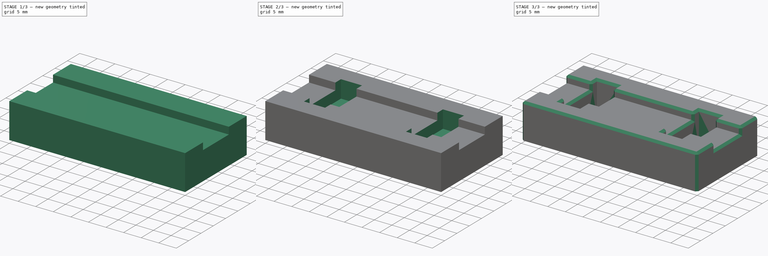
[diagram: build sequence overview — one tinted view per stage of 3, left to right]
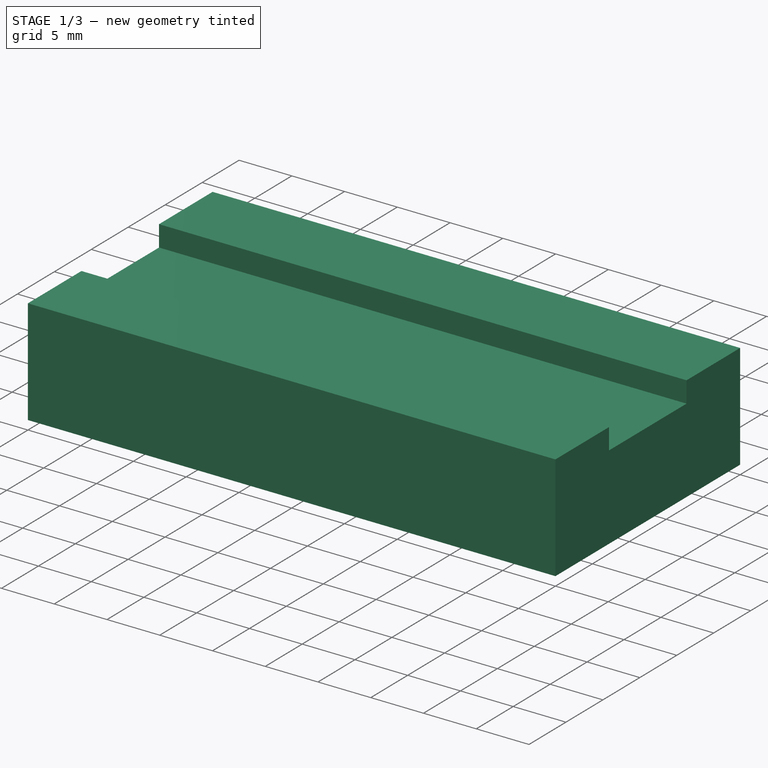
[diagram: stage 1 of 3 — iso view after this stage's code; geometry added in this stage tinted green]
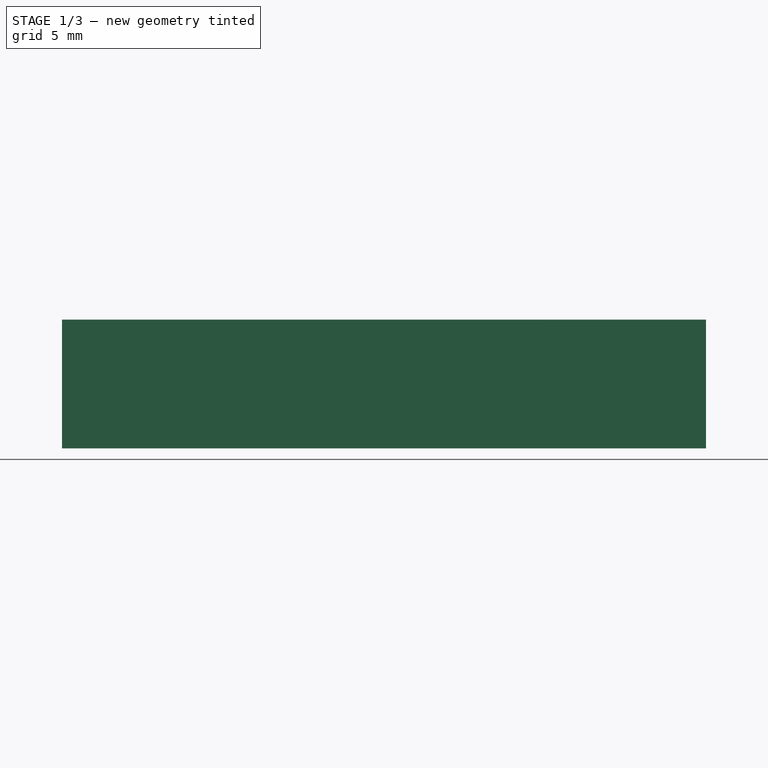
[diagram: stage 1 of 3 — front view after this stage's code; geometry added in this stage tinted green]
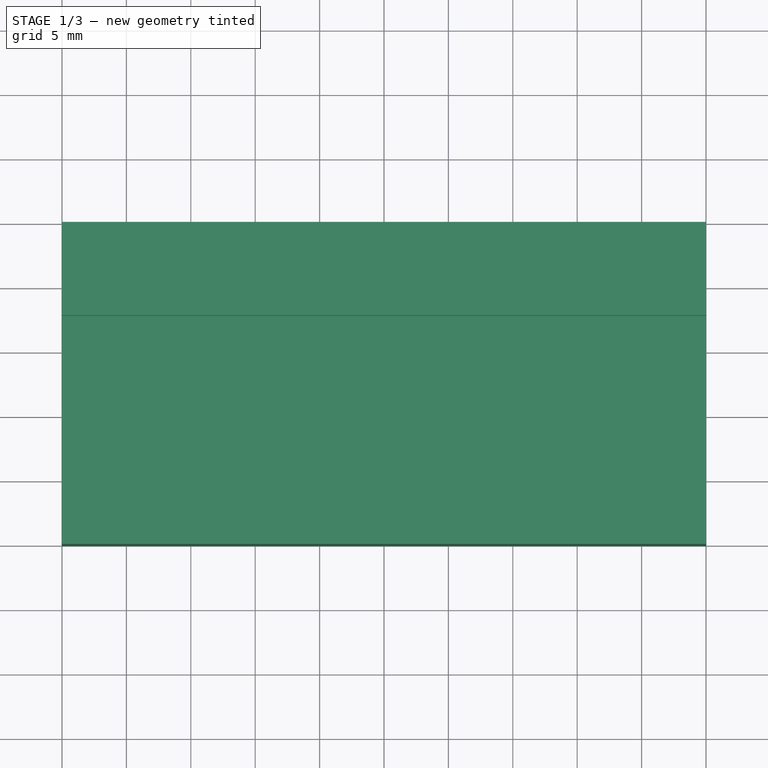
[diagram: stage 1 of 3 — top view after this stage's code; geometry added in this stage tinted green]
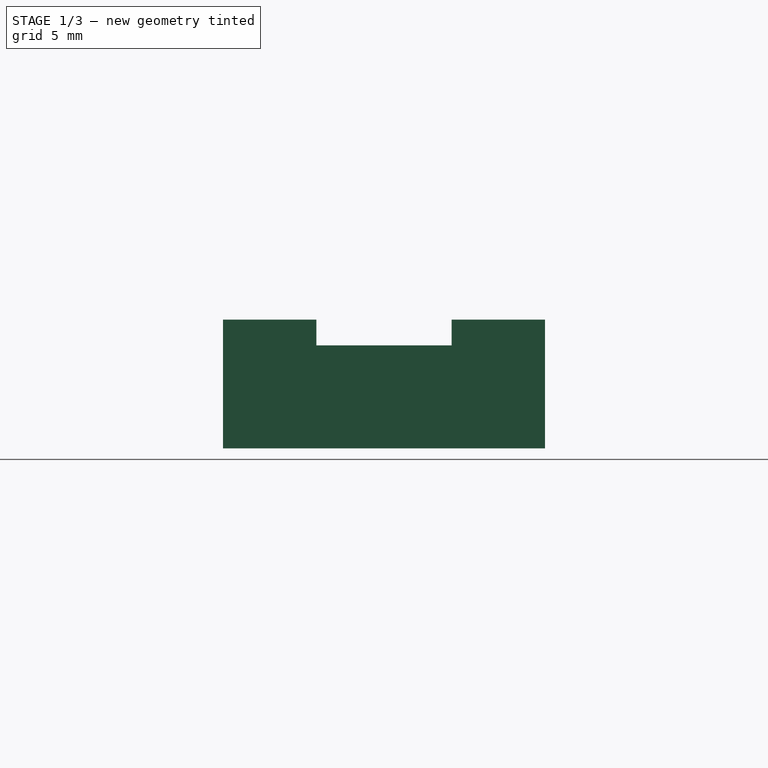
[diagram: stage 1 of 3 — right view after this stage's code; geometry added in this stage tinted green]
FCSTD DOCUMENT  (FreeCAD 0.21R33771 (Git))
Label: GEMS_Connector
License: All rights reserved
LicenseURL: http://en.wikipedia.org/wiki/All_rights_reserved
objects: Sketcher::SketchObject×4, PartDesign::Pocket×3, PartDesign::Pad×1, PartDesign::Chamfer×1, PartDesign::Body×1, App::Part×1
note: 15 computed .brp shape members not serialized (recipe doc carries the construction recipe); baked Part::Feature solids carry a one-line shape summary decoded from their .brp

FEATURE [Sketcher::SketchObject] Sketch
  FullyConstrained = true
  MapMode = 5
  Support = -> [XY_Plane001]
  sketch-geometry (4):
    g0: LineSegment StartX=0 StartY=0 StartZ=0 EndX=50 EndY=0 EndZ=0
    g1: LineSegment StartX=50 StartY=0 StartZ=0 EndX=50 EndY=25 EndZ=0
    g2: LineSegment StartX=50 StartY=25 StartZ=0 EndX=0 EndY=25 EndZ=0
    g3: LineSegment StartX=0 StartY=25 StartZ=0 EndX=0 EndY=0 EndZ=0
  constraints (11):
    c: Coincident(g0,g1)
    c: Coincident(g1,g2)
    c: Coincident(g2,g3)
    c: Coincident(g3,g0)
    c: Horizontal(g0)
    c: Horizontal(g2)
    c: Vertical(g1)
    c: Vertical(g3)
    c: Coincident(g0,g-1)
    c: DistanceY(g1,g1) = 25
    c: DistanceX(g2,g2) = 50
FEATURE [PartDesign::Pad] Pad
  Direction = (0,0,1)
  Length = 10
  Length2 = 10
  Profile = -> Sketch
  ReferenceAxis = -> Sketch [N_Axis]
  Type = 0
FEATURE [Sketcher::SketchObject] Sketch001
  ExternalGeometry = -> [Pad]
  FullyConstrained = true
  MapMode = 5
  Placement = pos=(0,0,10) rot=(0,0,1;0rad)
  Support = -> [Pad]
  sketch-geometry (6):
    g0: LineSegment StartX=0 StartY=17.75 StartZ=0 EndX=50 EndY=17.75 EndZ=0
    g1: LineSegment StartX=50 StartY=17.75 StartZ=0 EndX=50 EndY=7.25 EndZ=0
    g2: LineSegment StartX=50 StartY=7.25 StartZ=0 EndX=0 EndY=7.25 EndZ=0
    g3: LineSegment StartX=0 StartY=7.25 StartZ=0 EndX=0 EndY=17.75 EndZ=0
    g4: LineSegment StartX=0 StartY=17.75 StartZ=0 EndX=50 EndY=25 EndZ=0
    g5: LineSegment StartX=0 StartY=7.25 StartZ=0 EndX=50 EndY=0 EndZ=0
  constraints (16):
    c: Coincident(g0,g1)
    c: Coincident(g1,g2)
    c: Coincident(g2,g3)
    c: Coincident(g3,g0)
    c: Horizontal(g0)
    c: Horizontal(g2)
    c: Vertical(g1)
    c: Vertical(g3)
    c: PointOnObject(g0,g-4)
    c: PointOnObject(g1,g-3)
    c: DistanceY(g3,g3) = 10.5
    c: Coincident(g4,g0)
    c: Coincident(g4,g-3)
    c: Coincident(g5,g2)
    c: Coincident(g5,g-3)
    c: Equal(g5,g4)
FEATURE [PartDesign::Pocket] Pocket
  BaseFeature = -> Pad
  Direction = (0,0,-1)
  Length = 2
  Length2 = 5
  Profile = -> Sketch001
  ReferenceAxis = -> Sketch001 [N_Axis]
  Type = 0
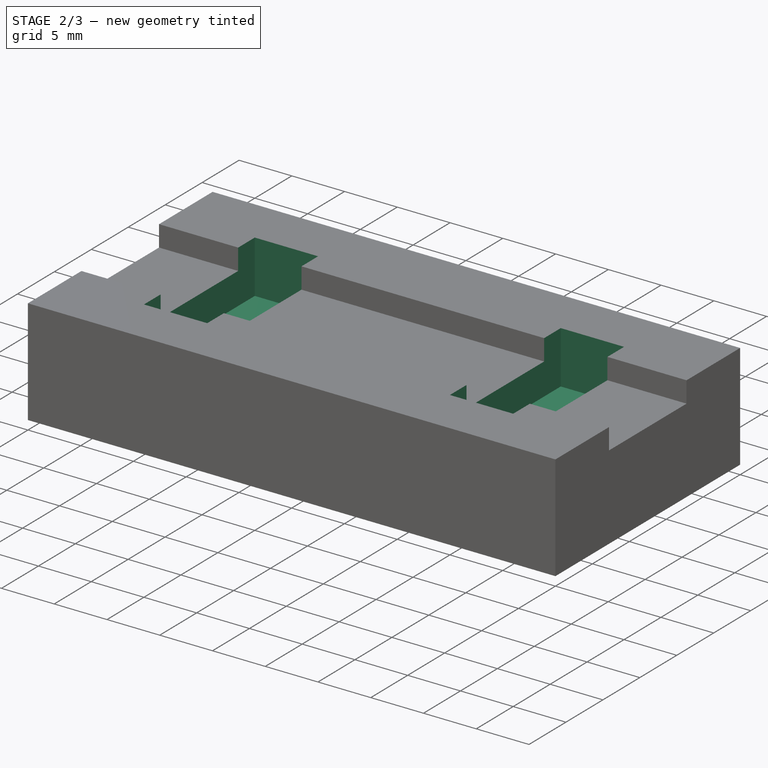
[diagram: stage 2 of 3 — iso view after this stage's code; geometry added in this stage tinted green]
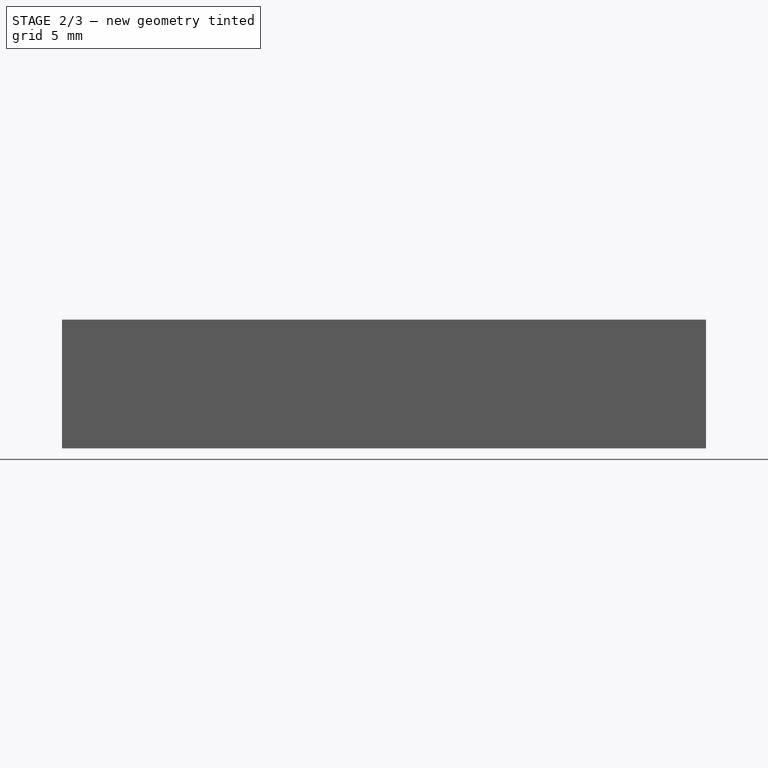
[diagram: stage 2 of 3 — front view after this stage's code; geometry added in this stage tinted green]
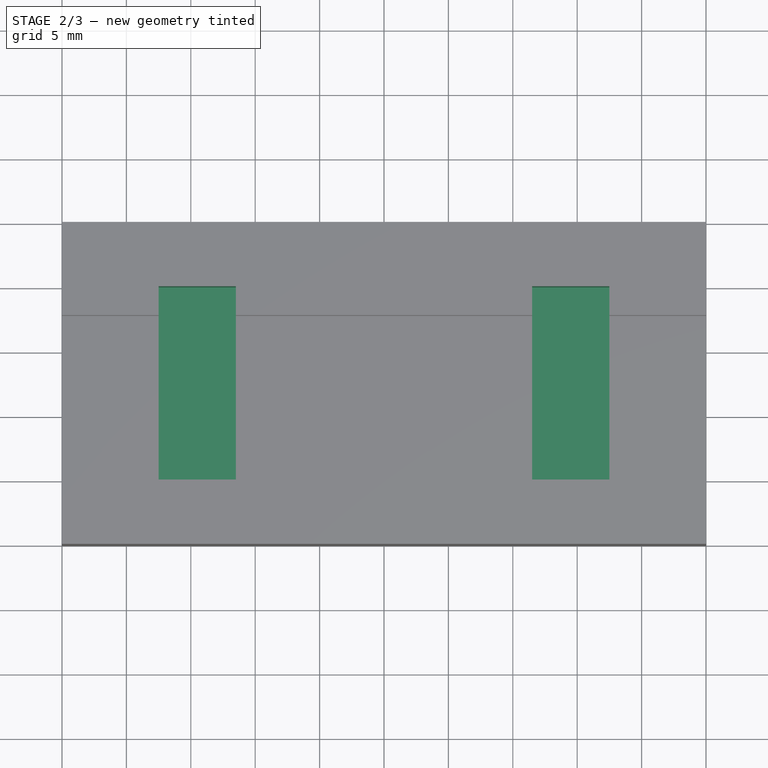
[diagram: stage 2 of 3 — top view after this stage's code; geometry added in this stage tinted green]
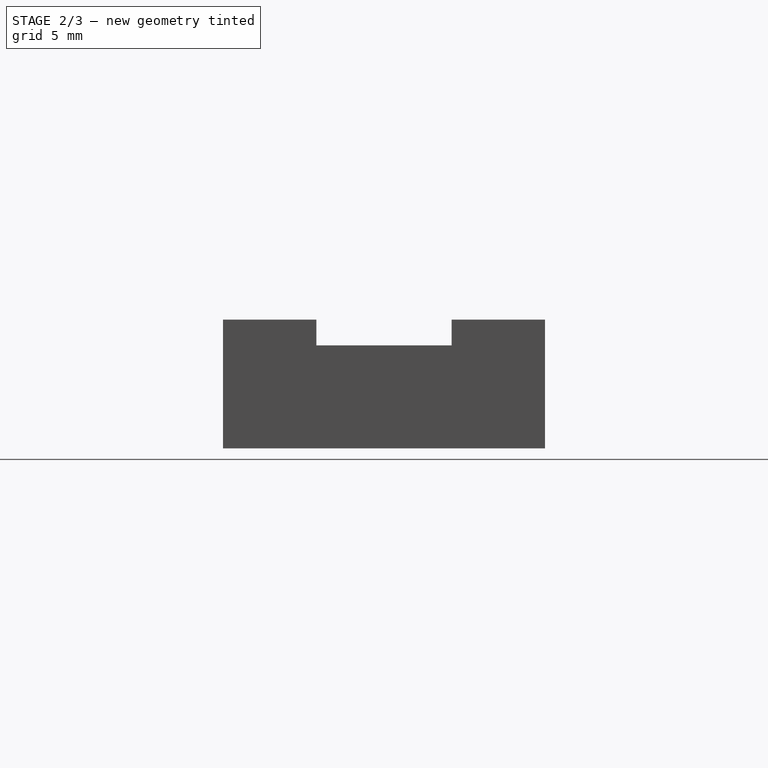
[diagram: stage 2 of 3 — right view after this stage's code; geometry added in this stage tinted green]
FEATURE [Sketcher::SketchObject] Sketch002
  ExternalGeometry = -> [Pocket]
  FullyConstrained = true
  MapMode = 5
  Placement = pos=(0,0,10) rot=(0,0,1;0rad)
  Support = -> [Pocket]
  sketch-geometry (12):
    g0: LineSegment StartX=7.5 StartY=20 StartZ=0 EndX=13.5 EndY=20 EndZ=0
    g1: LineSegment StartX=13.5 StartY=20 StartZ=0 EndX=13.5 EndY=5 EndZ=0
    g2: LineSegment StartX=13.5 StartY=5 StartZ=0 EndX=7.5 EndY=5 EndZ=0
    g3: LineSegment StartX=7.5 StartY=5 StartZ=0 EndX=7.5 EndY=20 EndZ=0
    g4: LineSegment StartX=36.5 StartY=20 StartZ=0 EndX=42.5 EndY=20 EndZ=0
    g5: LineSegment StartX=42.5 StartY=20 StartZ=0 EndX=42.5 EndY=5 EndZ=0
    g6: LineSegment StartX=42.5 StartY=5 StartZ=0 EndX=36.5 EndY=5 EndZ=0
    g7: LineSegment StartX=36.5 StartY=5 StartZ=0 EndX=36.5 EndY=20 EndZ=0
    g8: LineSegment StartX=0 StartY=25 StartZ=0 EndX=7.5 EndY=20 EndZ=0
    g9: LineSegment StartX=42.5 StartY=20 StartZ=0 EndX=50 EndY=25 EndZ=0
    g10: LineSegment StartX=0 StartY=0 StartZ=0 EndX=7.5 EndY=5 EndZ=0
    g11: LineSegment StartX=42.5 StartY=5 StartZ=0 EndX=50 EndY=-9e-16 EndZ=0
  constraints (32):
    c: Coincident(g0,g1)
    c: Coincident(g1,g2)
    c: Coincident(g2,g3)
    c: Coincident(g3,g0)
    c: Horizontal(g0)
    c: Horizontal(g2)
    c: Vertical(g1)
    c: Vertical(g3)
    c: Coincident(g4,g5)
    c: Coincident(g5,g6)
    c: Coincident(g6,g7)
    c: Coincident(g7,g4)
    c: Horizontal(g4)
    c: Horizontal(g6)
    c: Vertical(g5)
    c: Vertical(g7)
    c: Equal(g1,g7)
    c: Equal(g0,g4)
    c: DistanceX(g0,g0) = 6
    c: DistanceY(g3,g3) = 15
    c: PointOnObject(g0,g4)
    c: DistanceX(g0,g4) = 23
    c: Coincident(g8,g-4)
    c: Coincident(g8,g0)
    c: Coincident(g9,g4)
    c: Coincident(g9,g-3)
    c: Coincident(g10,g-6)
    c: Coincident(g10,g2)
    c: Coincident(g11,g5)
    c: Coincident(g11,g-5)
    c: Equal(g11,g10)
    c: Equal(g10,g8)
FEATURE [PartDesign::Pocket] Pocket001
  BaseFeature = -> Pocket
  Direction = (0,0,-1)
  Length = 5
  Length2 = 5
  Profile = -> Sketch002
  ReferenceAxis = -> Sketch002 [N_Axis]
  Type = 0
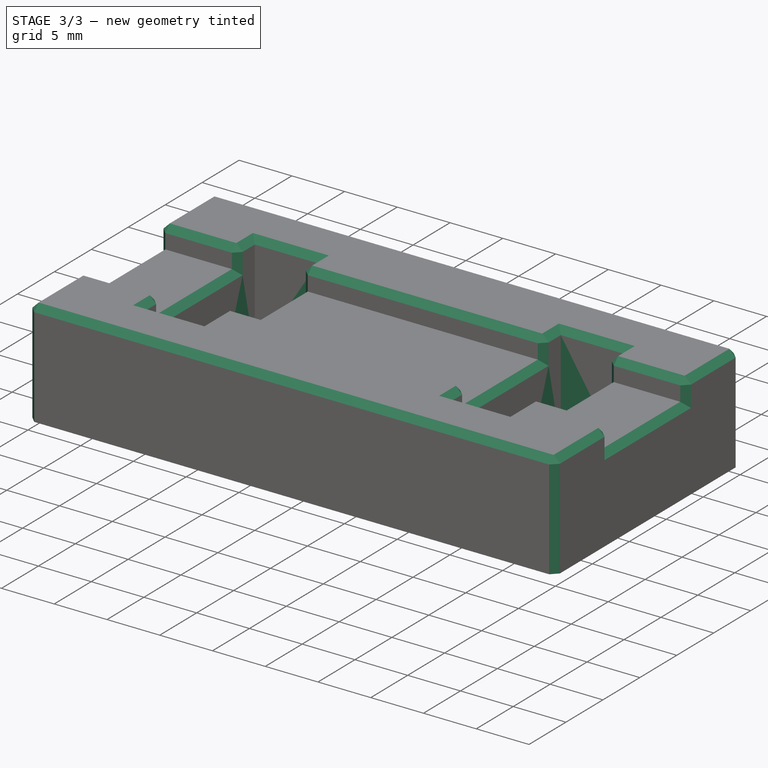
[diagram: stage 3 of 3 — iso view after this stage's code; geometry added in this stage tinted green]
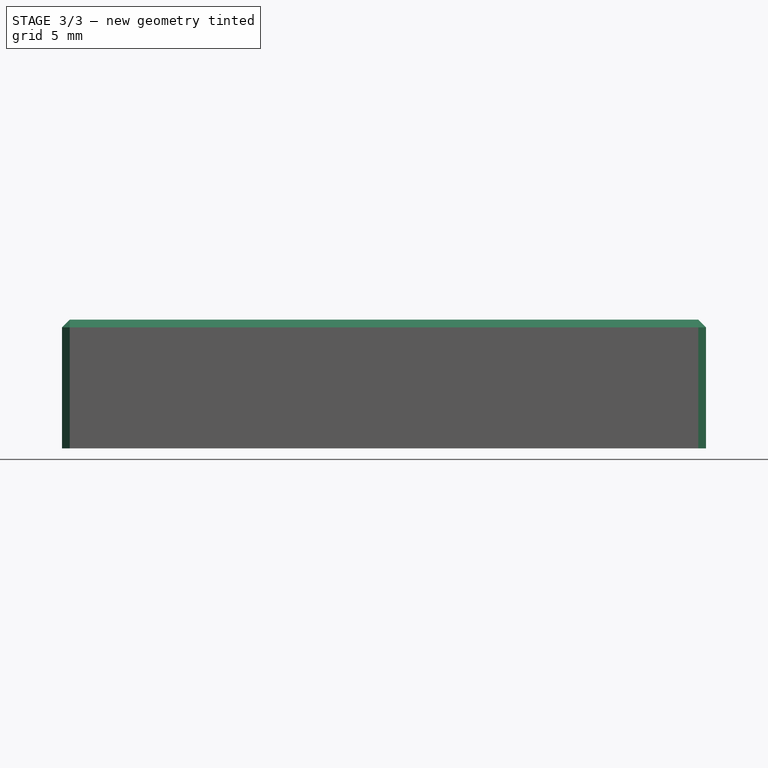
[diagram: stage 3 of 3 — front view after this stage's code; geometry added in this stage tinted green]
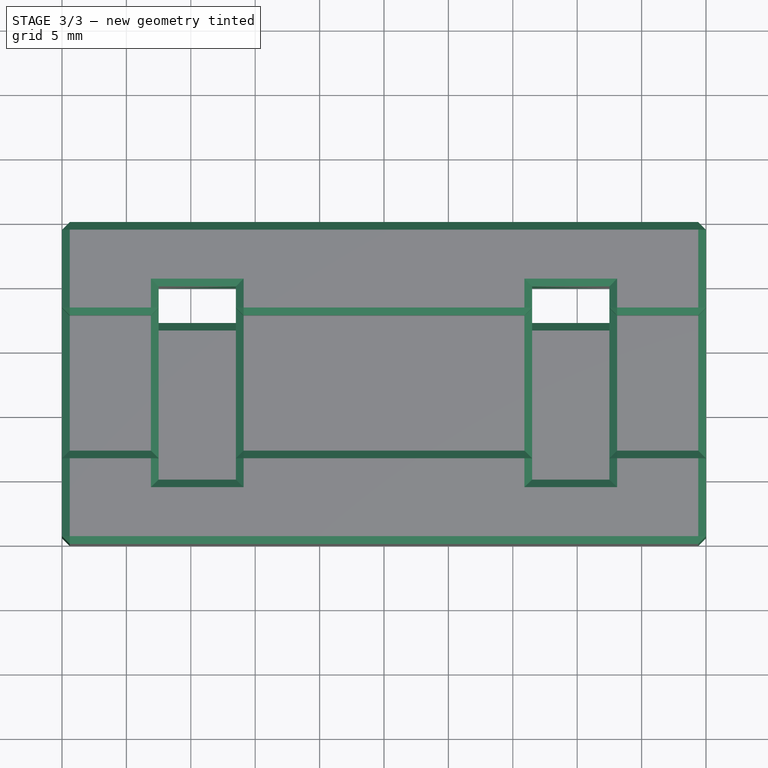
[diagram: stage 3 of 3 — top view after this stage's code; geometry added in this stage tinted green]
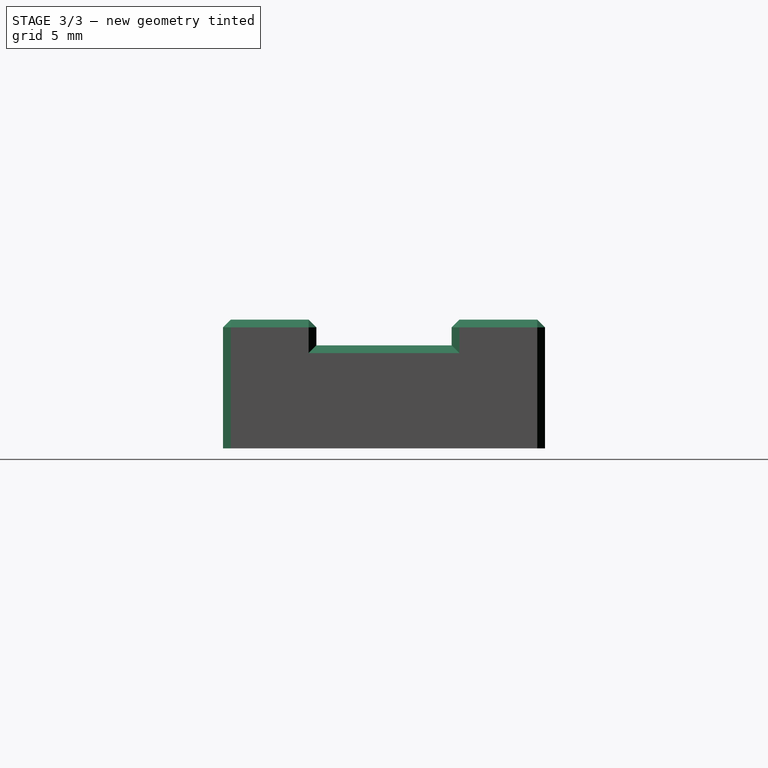
[diagram: stage 3 of 3 — right view after this stage's code; geometry added in this stage tinted green]
FEATURE [Sketcher::SketchObject] Sketch003
  ExternalGeometry = -> [Pocket001]
  FullyConstrained = true
  MapMode = 5
  Placement = pos=(0,0,5) rot=(0,0,1;0rad)
  Support = -> [Pocket001]
  sketch-geometry (15):
    g0: LineSegment StartX=8 StartY=19.25 StartZ=0 EndX=13 EndY=19.25 EndZ=0
    g1: LineSegment StartX=13 StartY=19.25 StartZ=0 EndX=13 EndY=5.75 EndZ=0
    g2: LineSegment StartX=13 StartY=5.75 StartZ=0 EndX=8 EndY=5.75 EndZ=0
    g3: LineSegment StartX=8 StartY=5.75 StartZ=0 EndX=8 EndY=19.25 EndZ=0
    g4: LineSegment StartX=13 StartY=5.75 StartZ=0 EndX=13.5 EndY=5 EndZ=0
    g5: LineSegment StartX=13 StartY=19.25 StartZ=0 EndX=13.5 EndY=20 EndZ=0
    g6: LineSegment StartX=8 StartY=19.25 StartZ=0 EndX=7.5 EndY=20 EndZ=0
    g7: LineSegment StartX=7.5 StartY=17.25 StartZ=0 EndX=13.5 EndY=17.25 EndZ=0
    g8: LineSegment StartX=13.5 StartY=17.25 StartZ=0 EndX=13.5 EndY=20 EndZ=0
    g9: LineSegment StartX=13.5 StartY=20 StartZ=0 EndX=7.5 EndY=20 EndZ=0
    g10: LineSegment StartX=7.5 StartY=20 StartZ=0 EndX=7.5 EndY=17.25 EndZ=0
    g11: LineSegment StartX=36.5 StartY=17.25 StartZ=0 EndX=42.5 EndY=17.25 EndZ=0
    g12: LineSegment StartX=42.5 StartY=17.25 StartZ=0 EndX=42.5 EndY=20 EndZ=0
    g13: LineSegment StartX=42.5 StartY=20 StartZ=0 EndX=36.5 EndY=20 EndZ=0
    g14: LineSegment StartX=36.5 StartY=20 StartZ=0 EndX=36.5 EndY=17.25 EndZ=0
  constraints (42):
    c: Coincident(g0,g1)
    c: Coincident(g1,g2)
    c: Coincident(g2,g3)
    c: Coincident(g3,g0)
    c: Horizontal(g0)
    c: Horizontal(g2)
    c: Vertical(g1)
    c: Vertical(g3)
    c: DistanceY(g1,g1) = 13.5
    c: Coincident(g4,g1)
    c: Coincident(g4,g-4)
    c: Coincident(g5,g0)
    c: Coincident(g5,g-3)
    c: Coincident(g6,g0)
    c: Coincident(g6,g-3)
    c: DistanceX(g0,g0) = 5
    c: Equal(g5,g6)
    c: Equal(g6,g4)
    c: Coincident(g7,g8)
    c: Coincident(g8,g9)
    c: Coincident(g9,g10)
    c: Coincident(g10,g7)
    c: Horizontal(g7)
    c: Horizontal(g9)
    c: Vertical(g8)
    c: Vertical(g10)
    c: DistanceY(g7,g0) = 2
    c: PointOnObject(g7,g-6)
    c: PointOnObject(g7,g-5)
    c: Coincident(g11,g12)
    c: Coincident(g12,g13)
    c: Coincident(g13,g14)
    c: Coincident(g14,g11)
    c: Horizontal(g11)
    c: Horizontal(g13)
    c: Vertical(g12)
    c: Vertical(g14)
    c: PointOnObject(g11,g-8)
    c: PointOnObject(g12,g-9)
    c: PointOnObject(g13,g-7)
    c: PointOnObject(g11,g7)
    c: PointOnObject(g9,g-3)
FEATURE [PartDesign::Pocket] Pocket002
  BaseFeature = -> Pocket001
  Direction = (0,0,-1)
  Length = 5
  Length2 = 5
  Profile = -> Sketch003
  ReferenceAxis = -> Sketch003 [N_Axis]
  Refine = true
  Type = 0
FEATURE [PartDesign::Chamfer] Chamfer
  Angle = 45
  Base = -> Pocket002 [Edge43,Edge10,Edge41,Edge51,Edge50,Edge49,Edge48,Edge47,Edge46,Edge44,Edge14,Edge16,Edge15,Edge55,Edge36,Edge17,Edge35,Edge34,Edge33,Edge32,Edge31,Edge30,Edge29,Edge28,Edge40,Edge80,Edge79,Edge8,Edge9,Edge7,Edge6,Edge4,Edge18,Edge45,Edge38,Edge42,Edge66,Edge68,Edge72,Edge53,+8 more]
  BaseFeature = -> Pocket002
  ChamferType = 0
  FlipDirection = false
  Size = 0.6
  Size2 = 1
  SupportTransform = false
  UseAllEdges = false
FEATURE [PartDesign::Body] Body  label="P1"
  Group = -> [Sketch,Pad,Sketch001,Pocket,Sketch002,Pocket001,Sketch003,Pocket002,Chamfer]
  Origin = -> Origin001
  Tip = -> Chamfer
FEATURE [App::Part] Part  label="Tool"
  Group = -> [Body]
  Origin = -> Origin
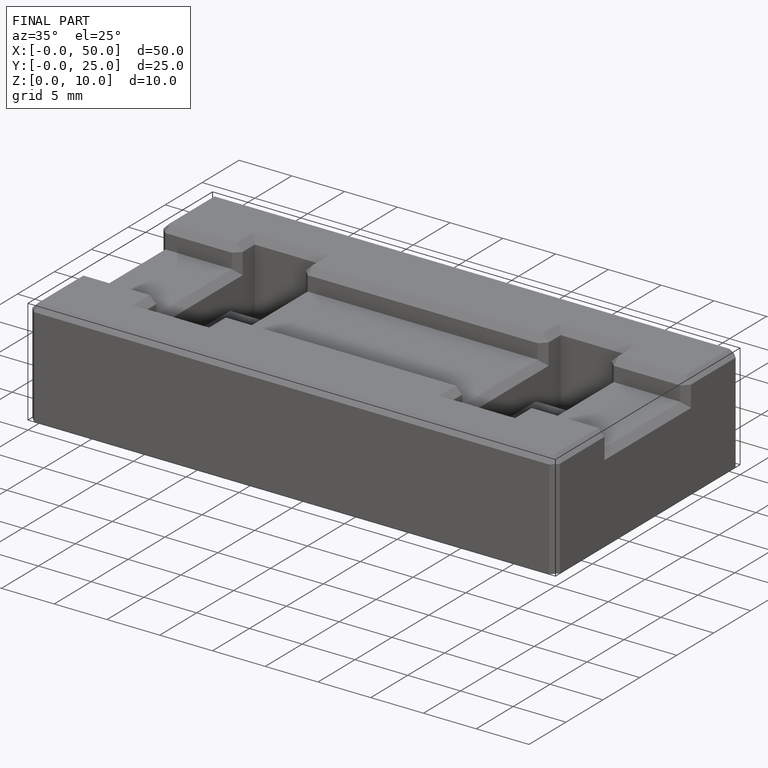
[diagram: finished part — iso view with bounding-box wireframe]
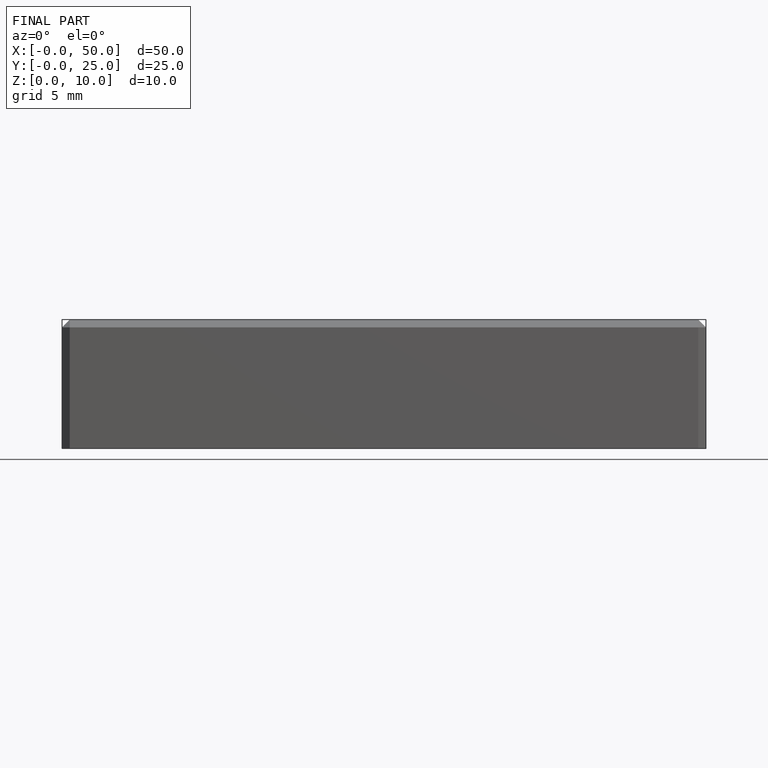
[diagram: finished part — front view with bounding-box wireframe]
